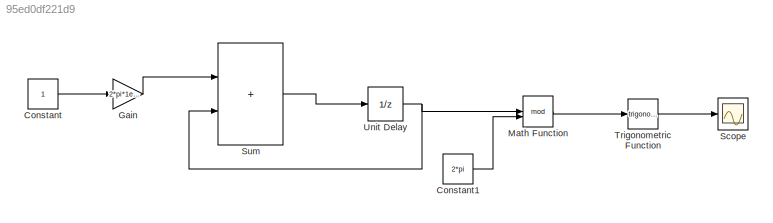
MODEL slx_95ed0df221d9
KIND model
CONFIG AbsTol = auto
CONFIG EnableMultiTasking = off
CONFIG FixedStep = auto
CONFIG MaxStep = auto
CONFIG MinStep = auto
CONFIG RelTol = 1e-3
CONFIG SampleTimeConstraint = Unconstrained
CONFIG SolverName = VariableStepAuto
CONFIG StartTime = 0.0
CONFIG StopTime = (1/10e9)*5
BLOCK [Constant] Constant
BLOCK [Constant] Constant1
  Value = 2*pi
BLOCK [Gain] Gain
  Gain = 2*pi*1e-12*10e9
BLOCK [Math] Math Function
  Operator = mod
BLOCK [Scope] Scope
  Floating = off
  NumInputPorts = 1
  ScopeSpecificationString = Simulink.scopes.TimeScopeBlockCfg('CurrentConfiguration', extmgr.ConfigurationSet(extmgr.Configuration('Core','General UI',true),extmgr.Configuration('Core','Source UI',true),extmgr.Configuration('Sources','WiredSimulink',true),extmgr.Configuration('Visuals','Time Domain',true,'SerializedDisplays',{struct('MinYLimReal','-1.25','MaxYLimReal','1.25','YLabelReal','','MinYLimMag','0.00000','MaxYLimMag...<+1352ch>
BLOCK [Sum] Sum
  IconShape = rectangular
  Inputs = |++
BLOCK [Trigonometry] Trigonometric Function
BLOCK [UnitDelay] Unit Delay
  HasFrameUpgradeWarning = on
  SampleTime = 1e-12
LINE Constant1:1 -> Math Function:2
LINE Constant:1 -> Gain:1
LINE Gain:1 -> Sum:1
LINE Math Function:1 -> Trigonometric Function:1
LINE Sum:1 -> Unit Delay:1
LINE Trigonometric Function:1 -> Scope:1
NET Unit Delay:1 -> Math Function:1, Sum:2
note: NET lines group one-source signal fan-out (src -> all destinations, sorted); 1:1 wires keep LINE
